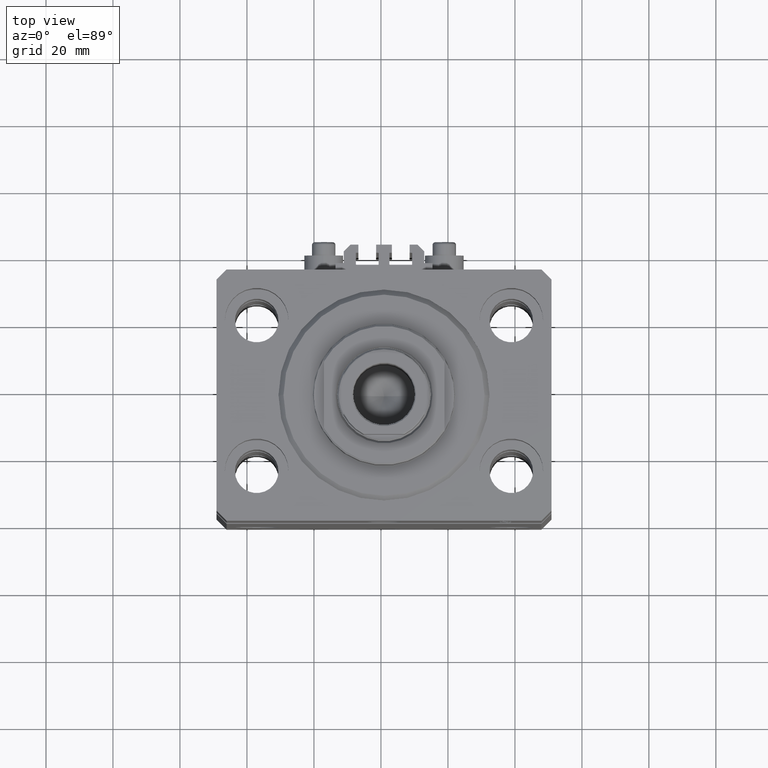
[diagram: clean part render]
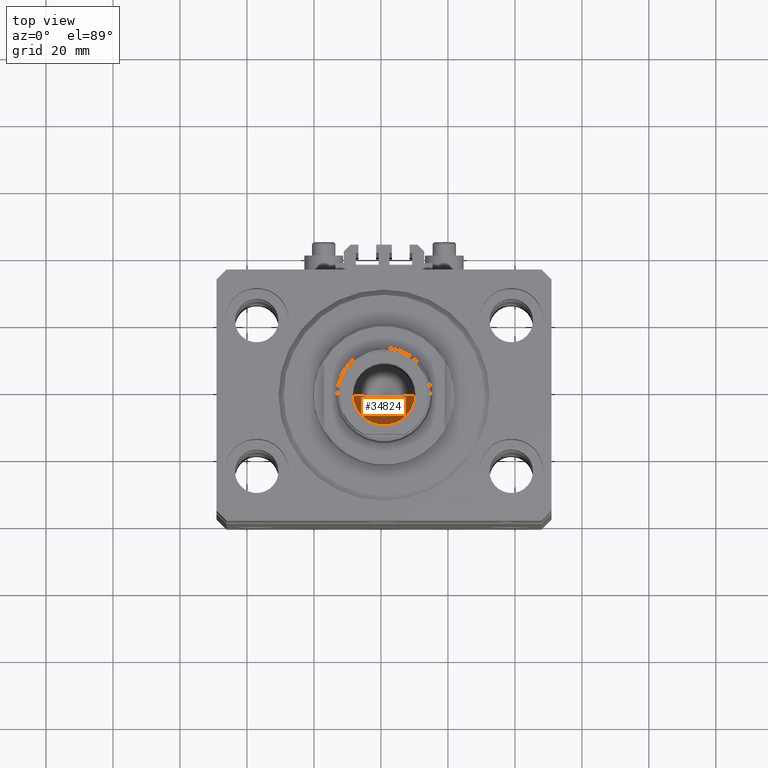
[diagram: same view with one face highlighted and labeled with its STEP entity id]
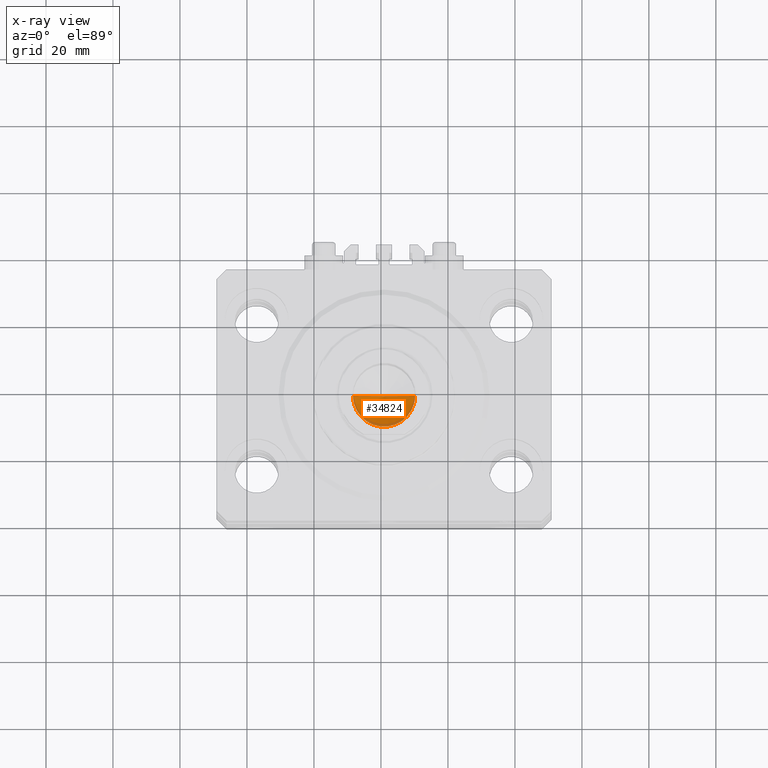
[diagram: x-ray of the same camera — body ghosted, the highlighted face saturated]
A machine part, top view. The second image highlights one B-rep face of the part: STEP entity #34824.
The next image is the same camera in x-ray: the body ghosted, the highlighted face saturated — about 8% of this face is hidden behind the body in this view.
In plain terms, the highlighted conical surface has half-angle 59 deg.
Its self-contained STEP definition (entity closure, byte-faithful):
#14 = VECTOR ( 'NONE', #14131, 1000.000000000000000 ) ;
#1324 = CARTESIAN_POINT ( 'NONE',  ( 0.000000000000000000, 0.000000000000000000, 128.1000000000000227 ) ) ;
#1860 = CONICAL_SURFACE ( 'NONE', #8838, 9.249999999999994671, 1.029744258676653423 ) ;
#2668 = CARTESIAN_POINT ( 'NONE',  ( 0.000000000000000000, 0.000000000000000000, 128.1000000000000227 ) ) ;
#6302 = ORIENTED_EDGE ( 'NONE', *, *, #9252, .T. ) ;
#7305 = VERTEX_POINT ( 'NONE', #26668 ) ;
#7312 = LINE ( 'NONE', #47330, #14 ) ;
#8838 = AXIS2_PLACEMENT_3D ( 'NONE', #2668, #36291, #40206 ) ;
#8879 = AXIS2_PLACEMENT_3D ( 'NONE', #1324, #34947, #42047 ) ;
#9252 = EDGE_CURVE ( 'NONE', #43371, #45873, #42345, .T. ) ;
#9960 = FACE_OUTER_BOUND ( 'NONE', #46253, .T. ) ;
#14131 = DIRECTION ( 'NONE',  ( -0.8571673007021117785, 1.049727191138617956E-16, 0.5150380749100550437 ) ) ;
#17928 = LINE ( 'NONE', #29379, #41882 ) ;
#20814 = ORIENTED_EDGE ( 'NONE', *, *, #46600, .F. ) ;
#21988 = CARTESIAN_POINT ( 'NONE',  ( 9.249999999999994671, 0.000000000000000000, 128.1000000000000227 ) ) ;
#26668 = CARTESIAN_POINT ( 'NONE',  ( -1.046994375366439223E-14, 0.000000000000000000, 122.5420392739950870 ) ) ;
#26814 = CARTESIAN_POINT ( 'NONE',  ( -9.249999999999994671, 1.132798289211300909E-15, 128.1000000000000227 ) ) ;
#29379 = CARTESIAN_POINT ( 'NONE',  ( 9.249999999999994671, 0.000000000000000000, 128.1000000000000227 ) ) ;
#30407 = EDGE_CURVE ( 'NONE', #7305, #43371, #7312, .T. ) ;
#33280 = DIRECTION ( 'NONE',  ( 0.8571673007021117785, 0.000000000000000000, 0.5150380749100550437 ) ) ;
#34824 = ADVANCED_FACE ( 'NONE', ( #9960 ), #1860, .F. ) ;
#34947 = DIRECTION ( 'NONE',  ( -0.000000000000000000, -0.000000000000000000, 1.000000000000000000 ) ) ;
#35062 = ORIENTED_EDGE ( 'NONE', *, *, #30407, .T. ) ;
#36291 = DIRECTION ( 'NONE',  ( -0.000000000000000000, -0.000000000000000000, 1.000000000000000000 ) ) ;
#40206 = DIRECTION ( 'NONE',  ( 1.000000000000000000, 0.000000000000000000, 0.000000000000000000 ) ) ;
#41882 = VECTOR ( 'NONE', #33280, 1000.000000000000000 ) ;
#42047 = DIRECTION ( 'NONE',  ( 1.000000000000000000, 0.000000000000000000, 0.000000000000000000 ) ) ;
#42345 = CIRCLE ( 'NONE', #8879, 9.249999999999994671 ) ;
#43371 = VERTEX_POINT ( 'NONE', #26814 ) ;
#45873 = VERTEX_POINT ( 'NONE', #21988 ) ;
#46253 = EDGE_LOOP ( 'NONE', ( #20814, #35062, #6302 ) ) ;
#46600 = EDGE_CURVE ( 'NONE', #7305, #45873, #17928, .T. ) ;
#47330 = CARTESIAN_POINT ( 'NONE',  ( -9.249999999999994671, 1.132798289211300909E-15, 128.1000000000000227 ) ) ;